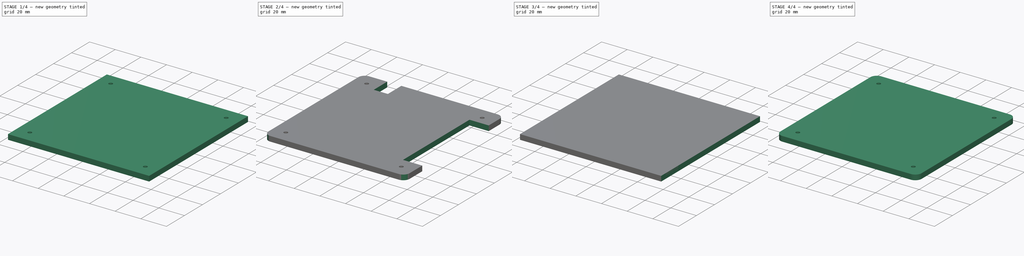
[diagram: build sequence overview — one tinted view per stage of 4, left to right]
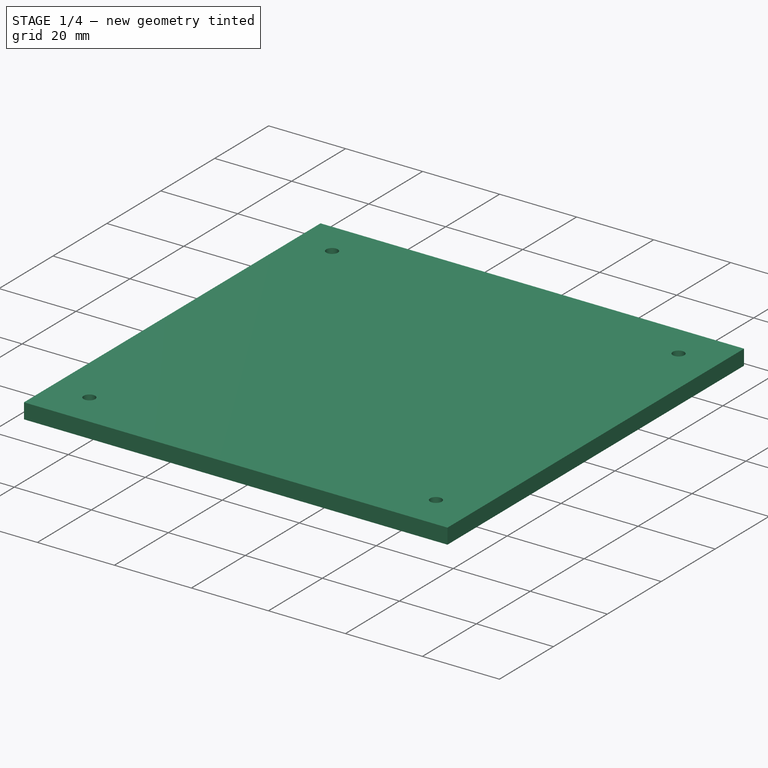
[diagram: stage 1 of 4 — iso view after this stage's code; geometry added in this stage tinted green]
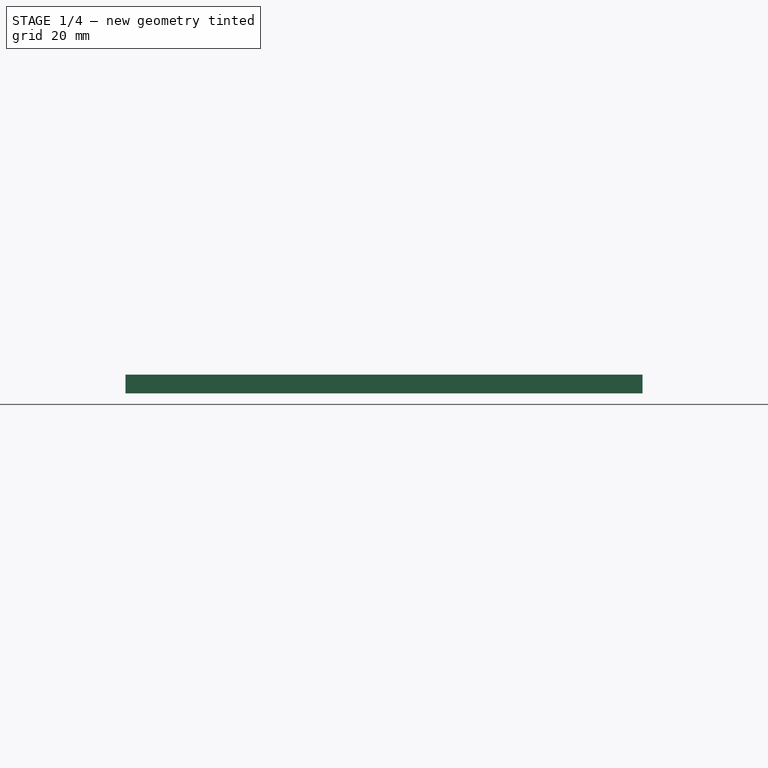
[diagram: stage 1 of 4 — front view after this stage's code; geometry added in this stage tinted green]
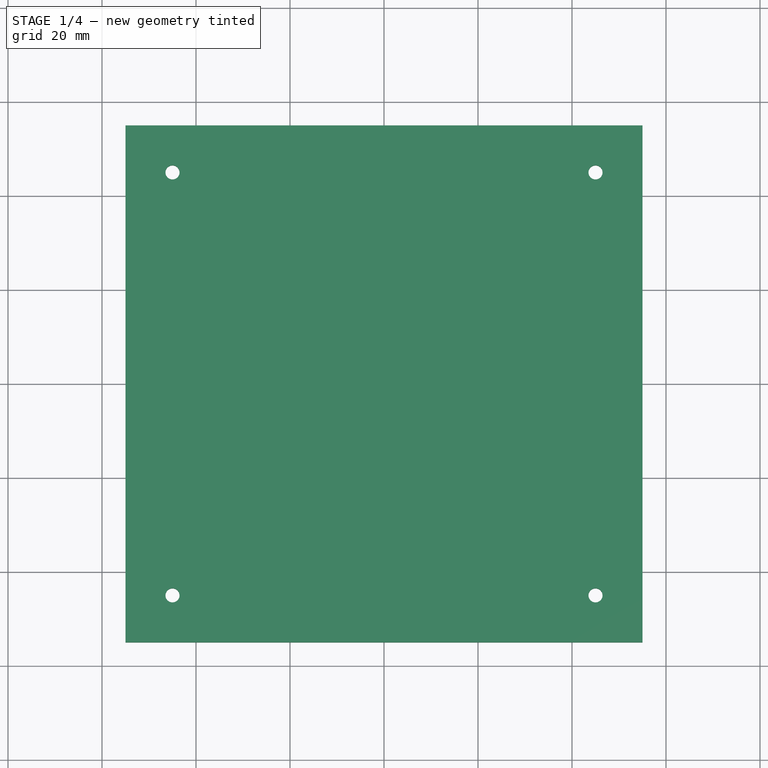
[diagram: stage 1 of 4 — top view after this stage's code; geometry added in this stage tinted green]
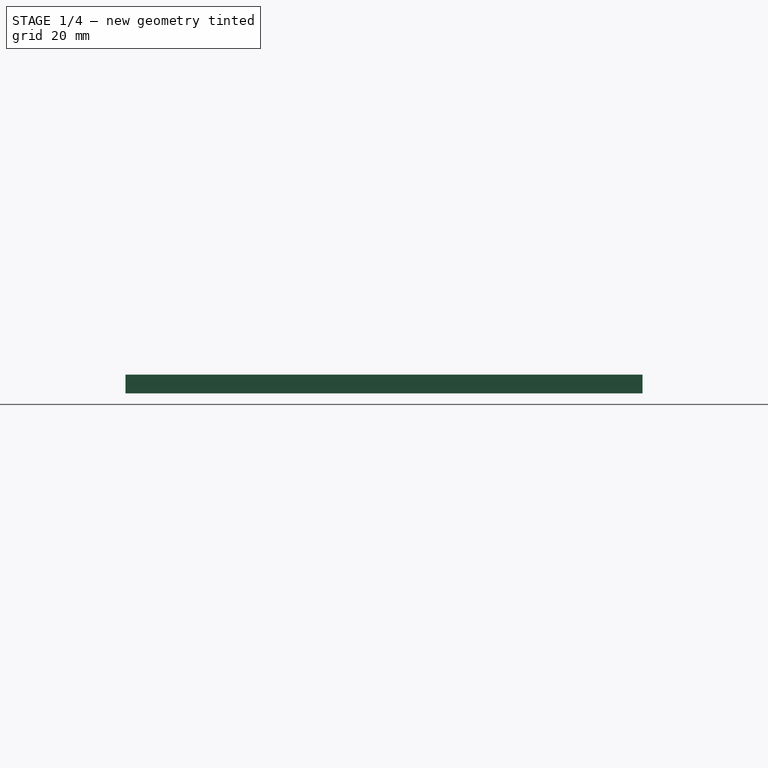
[diagram: stage 1 of 4 — right view after this stage's code; geometry added in this stage tinted green]
FCSTD DOCUMENT  (FreeCAD 0.21R33771 (Git))
Label: Ampel
License: All rights reserved
LicenseURL: https://en.wikipedia.org/wiki/All_rights_reserved
objects: Sketcher::SketchObject×7, PartDesign::Pocket×5, PartDesign::Pad×2, PartDesign::Fillet×2, PartDesign::Body×2, Part::Part2DObjectPython×2
note: 29 computed .brp shape members not serialized (recipe doc carries the construction recipe); baked Part::Feature solids carry a one-line shape summary decoded from their .brp

FEATURE [PartDesign::Body] Body  label="Bottom"
  Group = -> [Sketch,Pad,Sketch001,Pocket,Fillet]
  Origin = -> Origin
  Tip = -> Fillet
FEATURE [Sketcher::SketchObject] Sketch002
  FullyConstrained = true
  MapMode = 5
  Support = -> [XY_Plane001]
  sketch-geometry (4):
    g0: LineSegment StartX=-55 StartY=55 StartZ=0 EndX=55 EndY=55 EndZ=0
    g1: LineSegment StartX=55 StartY=55 StartZ=0 EndX=55 EndY=-55 EndZ=0
    g2: LineSegment StartX=55 StartY=-55 StartZ=0 EndX=-55 EndY=-55 EndZ=0
    g3: LineSegment StartX=-55 StartY=-55 StartZ=0 EndX=-55 EndY=55 EndZ=0
  constraints (10):
    c: Coincident(g0,g1)
    c: Coincident(g1,g2)
    c: Coincident(g2,g3)
    c: Coincident(g3,g0)
    c: Horizontal(g2)
    c: Vertical(g1)
    c: Symmetric(g0,g0,g-2)
    c: Symmetric(g0,g2,g-1)
    c: Equal(g0,g3)
    c: DistanceX(g0,g0) = 110
FEATURE [PartDesign::Pad] Pad001
  Direction = (0,0,1)
  Length = 4
  Length2 = 10
  Profile = -> Sketch002
  ReferenceAxis = -> Sketch002 [N_Axis]
  Type = 0
FEATURE [Sketcher::SketchObject] Sketch003
  FullyConstrained = true
  MapMode = 5
  Placement = pos=(0,0,4) rot=(0,0,1;0rad)
  Support = -> [Pad001]
  sketch-geometry (4):
    g0: Circle CenterX=-45 CenterY=45 CenterZ=0 NormalX=0 NormalY=0 NormalZ=1 AngleXU=0 Radius=1.5
    g1: Circle CenterX=45 CenterY=45 CenterZ=0 NormalX=0 NormalY=0 NormalZ=1 AngleXU=0 Radius=1.5
    g2: Circle CenterX=-45 CenterY=-45 CenterZ=0 NormalX=0 NormalY=0 NormalZ=1 AngleXU=0 Radius=1.5
    g3: Circle CenterX=45 CenterY=-45 CenterZ=0 NormalX=0 NormalY=0 NormalZ=1 AngleXU=0 Radius=1.5
  constraints (9):
    c: Symmetric(g1,g0,g-2)
    c: Symmetric(g0,g2,g-1)
    c: Symmetric(g2,g3,g-2)
    c: Equal(g3,g1)
    c: Equal(g3,g0)
    c: Equal(g3,g2)
    c: Diameter(g3) = 3
    c: DistanceX(g0,g1) = 90
    c: DistanceY(g2,g0) = 90
FEATURE [PartDesign::Pocket] Pocket001
  BaseFeature = -> Pad001
  Direction = (0,0,-1)
  Length = 0
  Length2 = 5
  Profile = -> Sketch003
  ReferenceAxis = -> Sketch003 [N_Axis]
  Type = 3
  UpToFace = -> Pad001 [Face5]
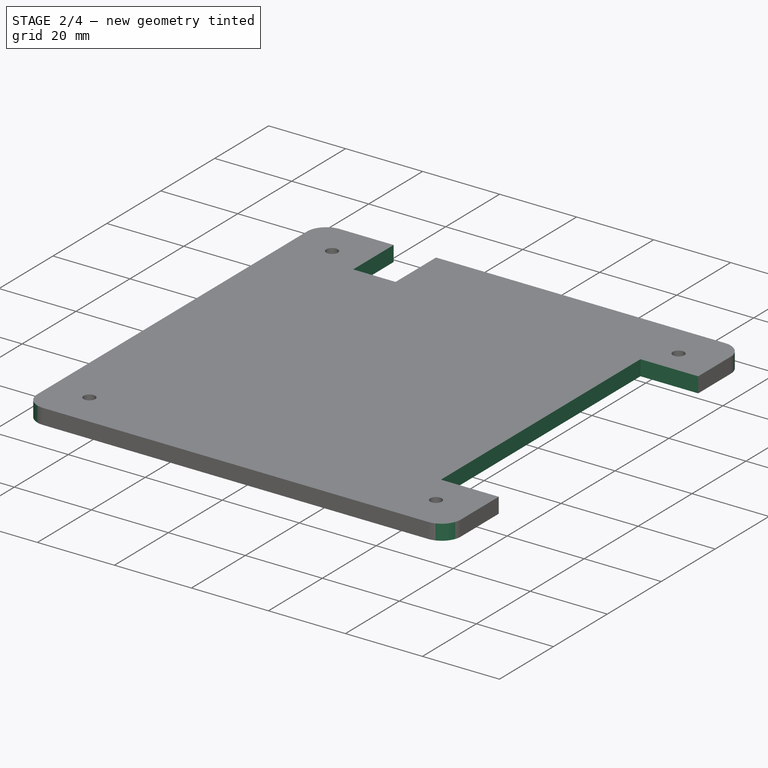
[diagram: stage 2 of 4 — iso view after this stage's code; geometry added in this stage tinted green]
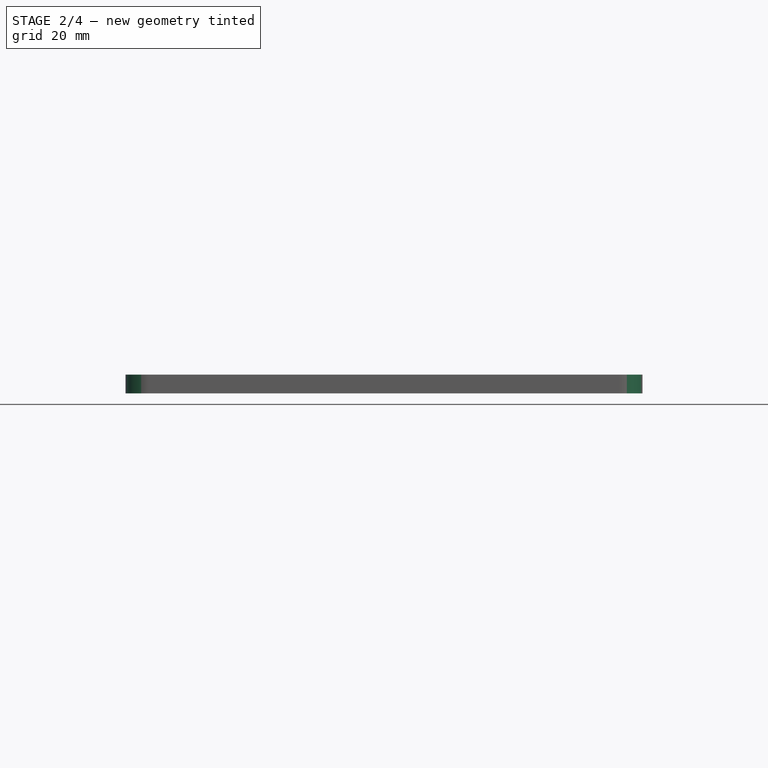
[diagram: stage 2 of 4 — front view after this stage's code; geometry added in this stage tinted green]
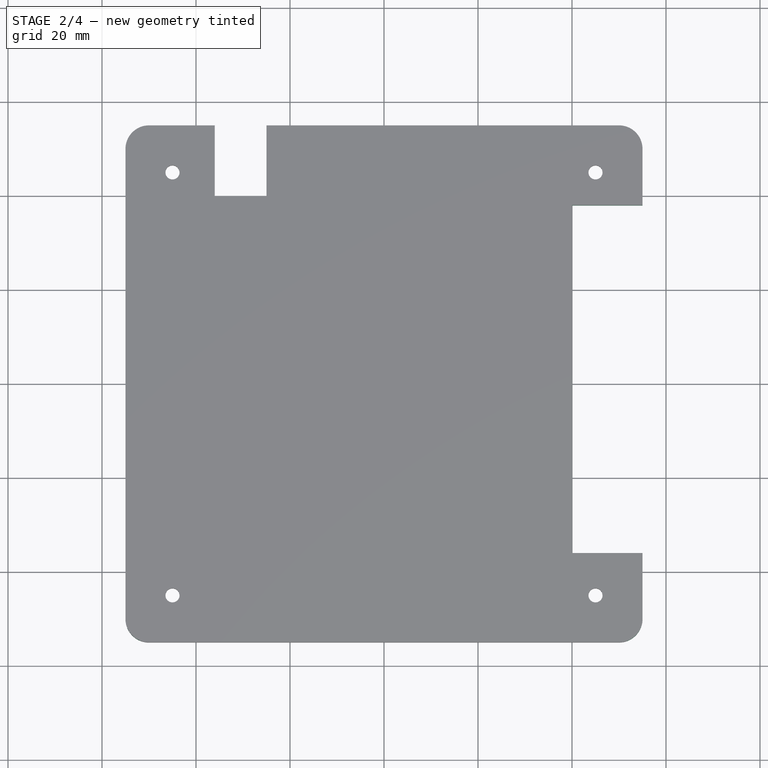
[diagram: stage 2 of 4 — top view after this stage's code; geometry added in this stage tinted green]
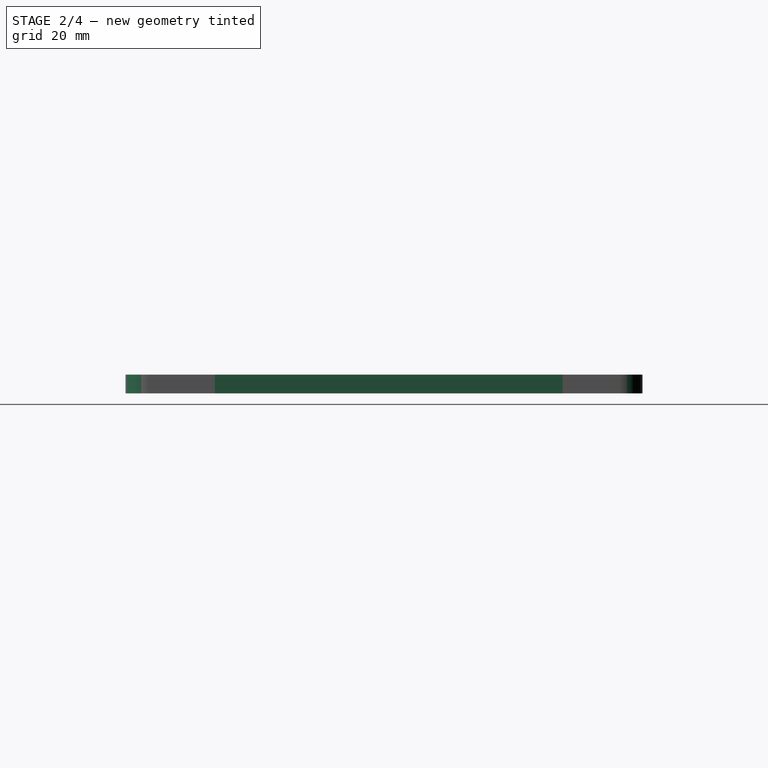
[diagram: stage 2 of 4 — right view after this stage's code; geometry added in this stage tinted green]
FEATURE [PartDesign::Fillet] Fillet001
  Base = -> Pocket001 [Edge8,Edge5,Edge2,Edge1]
  BaseFeature = -> Pocket001
  Radius = 5
  SupportTransform = false
  UseAllEdges = false
FEATURE [Sketcher::SketchObject] Sketch004
  ExternalGeometry = -> [Fillet001]
  FullyConstrained = true
  MapMode = 5
  Placement = pos=(0,0,4) rot=(0,0,1;0rad)
  Support = -> [Fillet001]
  sketch-geometry (12):
    g0: LineSegment StartX=55 StartY=38 StartZ=0 EndX=40 EndY=38 EndZ=0
    g1: LineSegment StartX=40 StartY=38 StartZ=0 EndX=40 EndY=-36 EndZ=0
    g2: LineSegment StartX=40 StartY=-36 StartZ=0 EndX=55 EndY=-36 EndZ=0
    g3: LineSegment StartX=55 StartY=-36 StartZ=0 EndX=55 EndY=38 EndZ=0
    g4: LineSegment StartX=-50 StartY=50 StartZ=0 EndX=50 EndY=50 EndZ=0
    g5: LineSegment StartX=50 StartY=50 StartZ=0 EndX=50 EndY=-50 EndZ=0
    g6: LineSegment StartX=50 StartY=-50 StartZ=0 EndX=-50 EndY=-50 EndZ=0
    g7: LineSegment StartX=-50 StartY=-50 StartZ=0 EndX=-50 EndY=50 EndZ=0
    g8: LineSegment StartX=-36 StartY=55 StartZ=0 EndX=-25 EndY=55 EndZ=0
    g9: LineSegment StartX=-25 StartY=55 StartZ=0 EndX=-25 EndY=40 EndZ=0
    g10: LineSegment StartX=-25 StartY=40 StartZ=0 EndX=-36 EndY=40 EndZ=0
    g11: LineSegment StartX=-36 StartY=40 StartZ=0 EndX=-36 EndY=55 EndZ=0
  constraints (33):
    c: Coincident(g0,g1)
    c: Coincident(g1,g2)
    c: Coincident(g2,g3)
    c: Coincident(g3,g0)
    c: Horizontal(g0)
    c: Horizontal(g2)
    c: Coincident(g4,g5)
    c: Coincident(g5,g6)
    c: Coincident(g6,g7)
    c: Coincident(g7,g4)
    c: Horizontal(g6)
    c: Symmetric(g4,g4,g-2)
    c: Symmetric(g4,g6,g-1)
    c: Equal(g7,g4)
    c: DistanceX(g4,g4) = 100
    c: Tangent(g3,g-3)
    c: Vertical(g1)
    c: Coincident(g8,g9)
    c: Coincident(g9,g10)
    c: Coincident(g10,g11)
    c: Coincident(g11,g8)
    c: Horizontal(g8)
    c: Horizontal(g10)
    c: Vertical(g9)
    c: Vertical(g11)
    c: PointOnObject(g8,g-4)
    c: DistanceX(g8,g8) = 11
    c: DistanceX(g1,g5) = 10
    c: Vertical(g5)
    c: DistanceY(g10,g4) = 10
    c: DistanceY(g5,g1) = 14
    c: DistanceY(g0,g4) = 12
    c: DistanceX(g4,g10) = 14
FEATURE [PartDesign::Pocket] Pocket002
  BaseFeature = -> Fillet001
  Direction = (0,0,-1)
  Length = 0
  Length2 = 5
  Profile = -> Sketch004
  ReferenceAxis = -> Sketch004 [N_Axis]
  Type = 3
  UpToFace = -> Fillet001 [Face2]
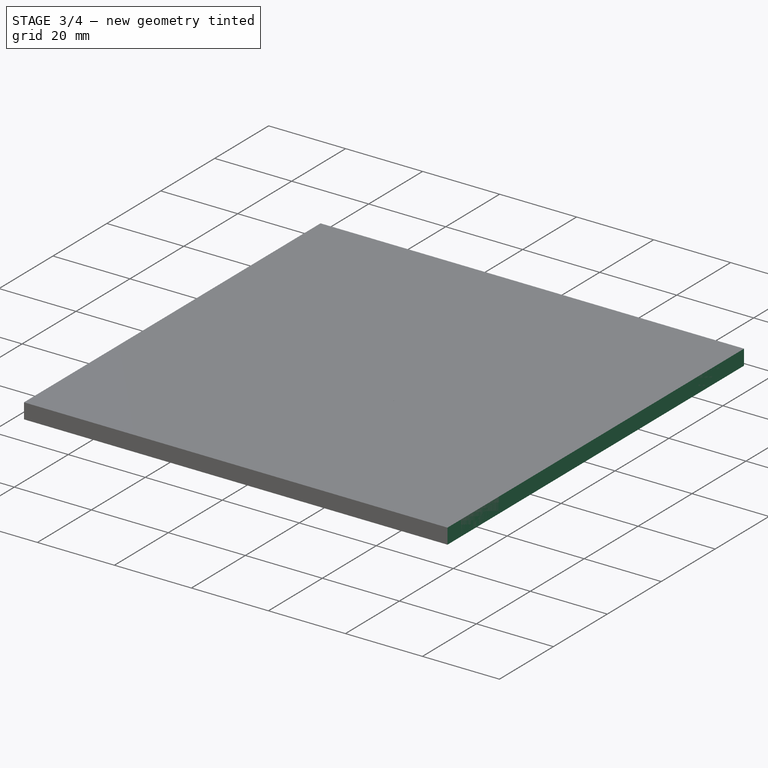
[diagram: stage 3 of 4 — iso view after this stage's code; geometry added in this stage tinted green]
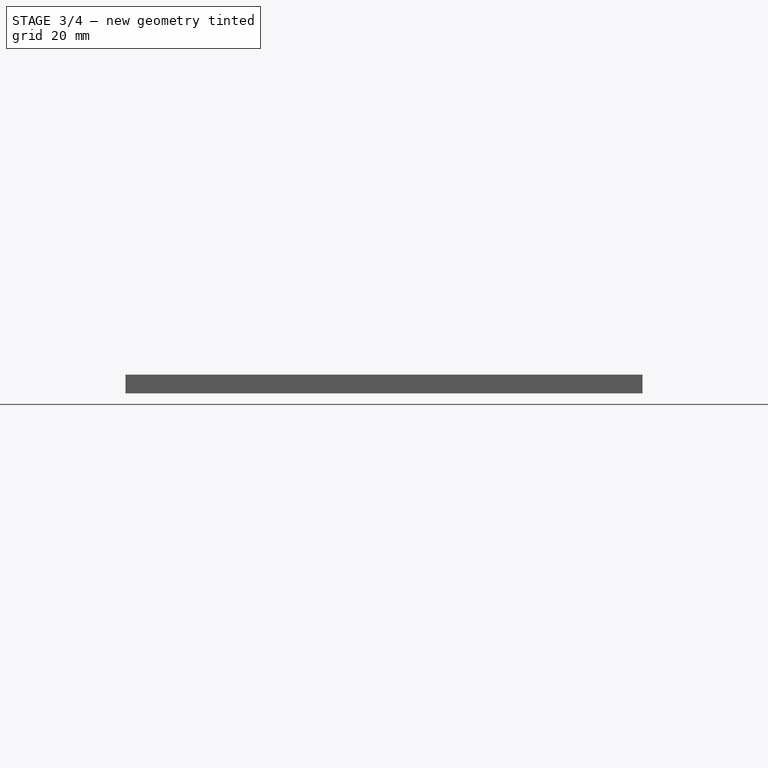
[diagram: stage 3 of 4 — front view after this stage's code; geometry added in this stage tinted green]
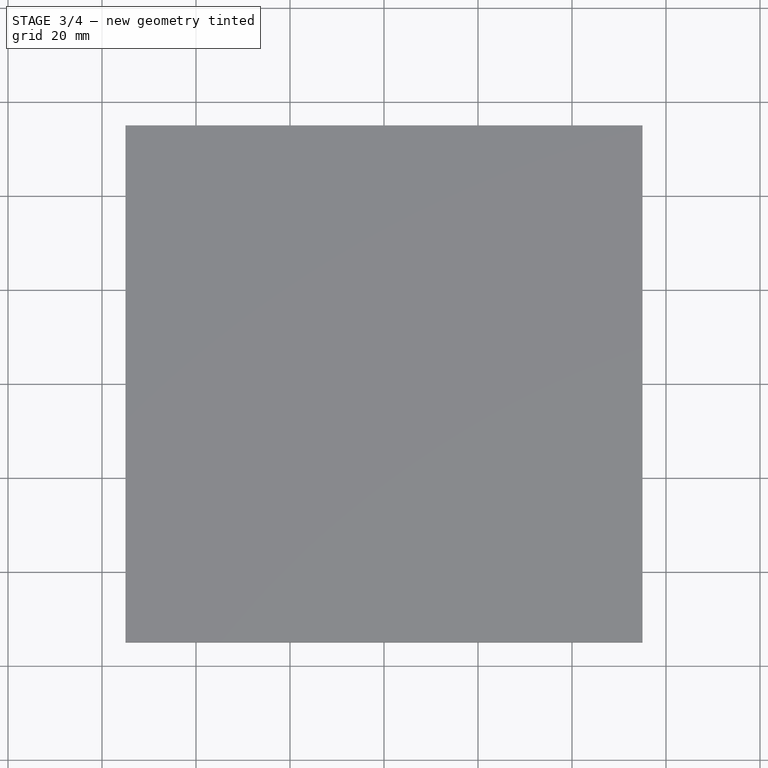
[diagram: stage 3 of 4 — top view after this stage's code; geometry added in this stage tinted green]
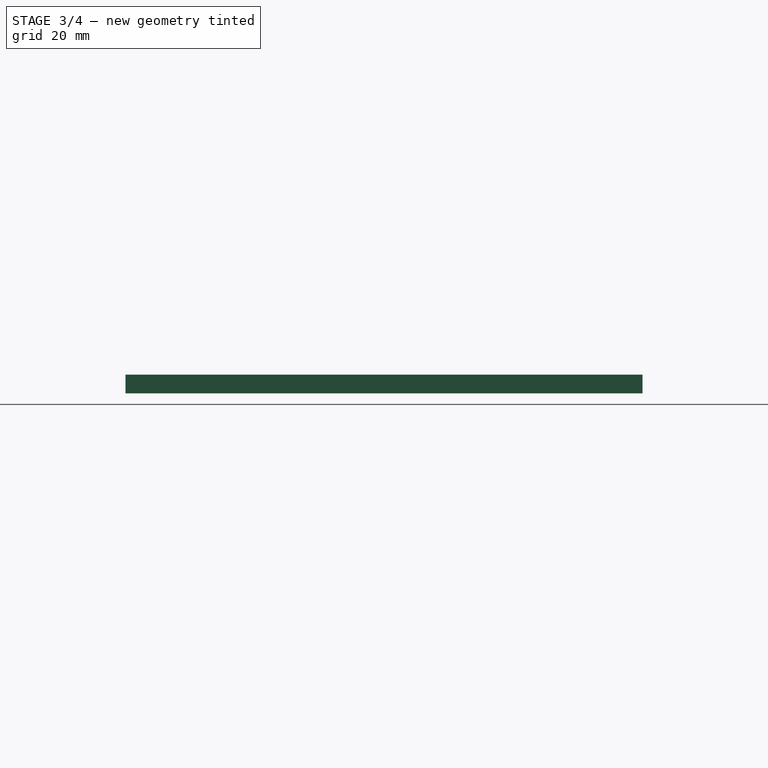
[diagram: stage 3 of 4 — right view after this stage's code; geometry added in this stage tinted green]
FEATURE [Sketcher::SketchObject] Sketch
  FullyConstrained = true
  MapMode = 5
  Support = -> [XY_Plane]
  sketch-geometry (4):
    g0: LineSegment StartX=-55 StartY=55 StartZ=0 EndX=55 EndY=55 EndZ=0
    g1: LineSegment StartX=55 StartY=55 StartZ=0 EndX=55 EndY=-55 EndZ=0
    g2: LineSegment StartX=55 StartY=-55 StartZ=0 EndX=-55 EndY=-55 EndZ=0
    g3: LineSegment StartX=-55 StartY=-55 StartZ=0 EndX=-55 EndY=55 EndZ=0
  constraints (10):
    c: Coincident(g0,g1)
    c: Coincident(g1,g2)
    c: Coincident(g2,g3)
    c: Coincident(g3,g0)
    c: Horizontal(g2)
    c: Vertical(g1)
    c: Symmetric(g0,g0,g-2)
    c: Symmetric(g0,g2,g-1)
    c: Equal(g0,g3)
    c: DistanceY(g1,g1) = 110
FEATURE [PartDesign::Pad] Pad
  Direction = (0,0,1)
  Length = 4
  Length2 = 10
  Profile = -> Sketch
  ReferenceAxis = -> Sketch [N_Axis]
  Type = 0
FEATURE [Sketcher::SketchObject] Sketch005
  FullyConstrained = true
  MapMode = 5
  Placement = pos=(0,0,4) rot=(0,0,1;0rad)
  Support = -> [Pocket002]
  sketch-geometry (26):
    g0: LineSegment StartX=-50 StartY=50 StartZ=0 EndX=50 EndY=50 EndZ=0
    g1: LineSegment StartX=50 StartY=50 StartZ=0 EndX=50 EndY=-50 EndZ=0
    g2: LineSegment StartX=50 StartY=-50 StartZ=0 EndX=-50 EndY=-50 EndZ=0
    g3: LineSegment StartX=-50 StartY=-50 StartZ=0 EndX=-50 EndY=50 EndZ=0
    g4: LineSegment StartX=-20 StartY=46 StartZ=0 EndX=0 EndY=46 EndZ=0
    g5: LineSegment StartX=0 StartY=46 StartZ=0 EndX=0 EndY=35 EndZ=0
    g6: LineSegment StartX=0 StartY=35 StartZ=0 EndX=-20 EndY=35 EndZ=0
    g7: LineSegment StartX=-20 StartY=35 StartZ=0 EndX=-20 EndY=46 EndZ=0
    g8: LineSegment StartX=8 StartY=46 StartZ=0 EndX=28 EndY=46 EndZ=0
    g9: LineSegment StartX=28 StartY=46 StartZ=0 EndX=28 EndY=35 EndZ=0
    g10: LineSegment StartX=28 StartY=35 StartZ=0 EndX=8 EndY=35 EndZ=0
    g11: LineSegment StartX=8 StartY=35 StartZ=0 EndX=8 EndY=46 EndZ=0
    g12: LineSegment StartX=-32.5 StartY=-31 StartZ=0 EndX=-23.5 EndY=-31 EndZ=0
    g13: LineSegment StartX=-23.5 StartY=-31 StartZ=0 EndX=-23.5 EndY=-45 EndZ=0
    g14: LineSegment StartX=-23.5 StartY=-45 StartZ=0 EndX=-32.5 EndY=-45 EndZ=0
    g15: LineSegment StartX=-32.5 StartY=-45 StartZ=0 EndX=-32.5 EndY=-31 EndZ=0
    g16: LineSegment StartX=-7 StartY=-31 StartZ=0 EndX=2 EndY=-31 EndZ=0
    g17: LineSegment StartX=2 StartY=-31 StartZ=0 EndX=2 EndY=-45 EndZ=0
    g18: LineSegment StartX=2 StartY=-45 StartZ=0 EndX=-7 EndY=-45 EndZ=0
    g19: LineSegment StartX=-7 StartY=-45 StartZ=0 EndX=-7 EndY=-31 EndZ=0
    g20: LineSegment StartX=16.5 StartY=-32 StartZ=0 EndX=27.5 EndY=-32 EndZ=0
    g21: LineSegment StartX=27.5 StartY=-32 StartZ=0 EndX=27.5 EndY=-46 EndZ=0
    g22: LineSegment StartX=27.5 StartY=-46 StartZ=0 EndX=16.5 EndY=-46 EndZ=0
    g23: LineSegment StartX=16.5 StartY=-46 StartZ=0 EndX=16.5 EndY=-32 EndZ=0
    g24: LineSegment StartX=-23.5 StartY=-31 StartZ=0 EndX=-7 EndY=-31 EndZ=0
    g25: LineSegment StartX=0 StartY=46 StartZ=0 EndX=8 EndY=46 EndZ=0
  constraints (74):
    c: Coincident(g0,g1)
    c: Coincident(g1,g2)
    c: Coincident(g2,g3)
    c: Coincident(g3,g0)
    c: Horizontal(g2)
    c: Vertical(g1)
    c: Symmetric(g0,g2,g-1)
    c: Symmetric(g0,g0,g-2)
    c: Equal(g0,g3)
    c: DistanceX(g0,g0) = 100
    c: Coincident(g4,g5)
    c: Coincident(g5,g6)
    c: Coincident(g6,g7)
    c: Coincident(g7,g4)
    c: Horizontal(g4)
    c: Horizontal(g6)
    c: Vertical(g5)
    c: Vertical(g7)
    c: Coincident(g8,g9)
    c: Coincident(g9,g10)
    c: Coincident(g10,g11)
    c: Coincident(g11,g8)
    c: Horizontal(g8)
    c: Horizontal(g10)
    c: Vertical(g9)
    c: Vertical(g11)
    c: Coincident(g12,g13)
    c: Coincident(g13,g14)
    c: Coincident(g14,g15)
    c: Coincident(g15,g12)
    c: Horizontal(g12)
    c: Horizontal(g14)
    c: Vertical(g13)
    c: Vertical(g15)
    c: Coincident(g16,g17)
    c: Coincident(g17,g18)
    c: Coincident(g18,g19)
    c: Coincident(g19,g16)
    c: Horizontal(g16)
    c: Horizontal(g18)
    c: Vertical(g17)
    c: Vertical(g19)
    c: Coincident(g20,g21)
    c: Coincident(g21,g22)
    c: Coincident(g22,g23)
    c: Coincident(g23,g20)
    c: Horizontal(g20)
    c: Horizontal(g22)
    c: Vertical(g21)
    c: Vertical(g23)
    c: Equal(g12,g16)
    c: Equal(g15,g19)
    c: Coincident(g24,g12)
    c: Coincident(g24,g16)
    c: Horizontal(g24)
    c: DistanceX(g12,g12) = 9
    c: DistanceY(g15,g15) = 14
    c: DistanceX(g20,g20) = 11
    c: DistanceY(g21,g21) = 14
    c: Equal(g9,g5)
    c: Equal(g8,g4)
    c: DistanceY(g9,g9) = 11
    c: DistanceX(g8,g8) = 20
    c: Coincident(g25,g4)
    c: Coincident(g25,g8)
    c: Horizontal(g25)
    c: DistanceX(g0,g4) = 30
    c: DistanceX(g8,g0) = 22
    c: DistanceY(g8,g0) = 4
    c: DistanceX(g2,g14) = 17.5
    c: DistanceX(g2,g18) = 43
    c: DistanceX(g21,g1) = 22.5
    c: DistanceY(g1,g21) = 4
    c: DistanceY(g2,g14) = 5
FEATURE [PartDesign::Pocket] Pocket003
  BaseFeature = -> Pocket002
  Direction = (0,0,-1)
  Length = 0
  Length2 = 5
  Profile = -> Sketch005
  ReferenceAxis = -> Sketch005 [N_Axis]
  Type = 3
  UpToFace = -> Pocket002 [Face2]
FEATURE [Sketcher::SketchObject] Sketch006
  FullyConstrained = true
  MapMode = 5
  Placement = pos=(0,0,4) rot=(0,0,1;0rad)
  Support = -> [Pocket003]
  sketch-geometry (16):
    g0: ArcOfCircle CenterX=-11.5 CenterY=14.3 CenterZ=0 NormalX=0 NormalY=0 NormalZ=1 AngleXU=0 Radius=3.5 StartAngle=1.95105 EndAngle=7.47373
    g1: ArcOfCircle CenterX=-11.5 CenterY=20.8 CenterZ=0 NormalX=0 NormalY=0 NormalZ=1 AngleXU=0 Radius=3.5 StartAngle=5.09264 EndAngle=10.6153
    g2: LineSegment StartX=-50 StartY=50 StartZ=0 EndX=50 EndY=50 EndZ=0
    g3: LineSegment StartX=50 StartY=50 StartZ=0 EndX=50 EndY=-50 EndZ=0
    g4: LineSegment StartX=50 StartY=-50 StartZ=0 EndX=-50 EndY=-50 EndZ=0
    g5: LineSegment StartX=-50 StartY=-50 StartZ=0 EndX=-50 EndY=50 EndZ=0
    g6: LineSegment StartX=-11.5 StartY=20.8 StartZ=0 EndX=-11.5 EndY=14.3 EndZ=0
    g7: ArcOfCircle CenterX=13 CenterY=14.5 CenterZ=0 NormalX=0 NormalY=0 NormalZ=1 AngleXU=0 Radius=3.5 StartAngle=0.380251 EndAngle=5.90293
    g8: ArcOfCircle CenterX=19.5 CenterY=14.5 CenterZ=0 NormalX=0 NormalY=0 NormalZ=1 AngleXU=0 Radius=3.5 StartAngle=3.52184 EndAngle=9.04453
    g9: ArcOfCircle CenterX=12.5 CenterY=-9.8 CenterZ=0 NormalX=0 NormalY=0 NormalZ=1 AngleXU=0 Radius=3.5 StartAngle=5.09264 EndAngle=10.6153
    g10: ArcOfCircle CenterX=12.5 CenterY=-16.3 CenterZ=0 NormalX=0 NormalY=0 NormalZ=1 AngleXU=0 Radius=3.5 StartAngle=1.95105 EndAngle=7.47373
    g11: ArcOfCircle CenterX=-11.3 CenterY=-9.5 CenterZ=0 NormalX=0 NormalY=0 NormalZ=1 AngleXU=0 Radius=3.5 StartAngle=3.52184 EndAngle=9.04453
    g12: ArcOfCircle CenterX=-17.8 CenterY=-9.5 CenterZ=0 NormalX=0 NormalY=0 NormalZ=1 AngleXU=0 Radius=3.5 StartAngle=0.380251 EndAngle=5.90293
    g13: LineSegment StartX=-17.8 StartY=-9.5 StartZ=0 EndX=-11.3 EndY=-9.5 EndZ=0
    g14: LineSegment StartX=13 StartY=14.5 StartZ=0 EndX=19.5 EndY=14.5 EndZ=0
    g15: LineSegment StartX=12.5 StartY=-9.8 StartZ=0 EndX=12.5 EndY=-16.3 EndZ=0
  constraints (50):
    c: Coincident(g2,g3)
    c: Coincident(g3,g4)
    c: Coincident(g4,g5)
    c: Coincident(g5,g2)
    c: Horizontal(g4)
    c: Vertical(g3)
    c: Symmetric(g2,g2,g-2)
    c: Symmetric(g2,g4,g-1)
    c: DistanceX(g2,g2) = 100
    c: Coincident(g6,g1)
    c: Coincident(g6,g0)
    c: Vertical(g6)
    c: Equal(g1,g0)
    c: Coincident(g13,g12)
    c: Coincident(g13,g11)
    c: Coincident(g14,g7)
    c: Coincident(g14,g8)
    c: Coincident(g15,g9)
    c: Coincident(g15,g10)
    c: Vertical(g15)
    c: Horizontal(g13)
    c: Horizontal(g14)
    c: Equal(g6,g14)
    c: Equal(g14,g15)
    c: Equal(g15,g13)
    c: Diameter(g1) = 7
    c: Equal(g1,g7)
    c: Equal(g0,g12)
    c: Equal(g12,g11)
    c: Equal(g11,g8)
    c: Equal(g8,g9)
    c: Equal(g9,g10)
    c: DistanceX(g4,g12) = 32.2
    c: DistanceY(g3,g10) = 33.7
    c: Equal(g5,g2)
    c: DistanceX(g8,g2) = 30.5
    c: DistanceY(g1,g2) = 29.2
    c: DistanceX(g4,g0) = 38.5
    c: DistanceY(g4,g11) = 40.5
    c: DistanceX(g9,g3) = 37.5
    c: DistanceY(g8,g2) = 35.5
    c: DistanceY(g6,g6) = 6.5
    c: Coincident(g1,g0)
    c: Coincident(g1,g0)
    c: Coincident(g12,g11)
    c: Coincident(g11,g12)
    c: Coincident(g9,g10)
    c: Coincident(g10,g9)
    c: Coincident(g7,g8)
    c: Coincident(g7,g8)
FEATURE [PartDesign::Pocket] Pocket004
  BaseFeature = -> Pocket003
  Direction = (0,0,-1)
  Length = 0
  Length2 = 5
  Profile = -> Sketch006
  ReferenceAxis = -> Sketch006 [N_Axis]
  Type = 3
  UpToFace = -> Pocket003 [Face2]
FEATURE [PartDesign::Body] Body001  label="Top"
  Group = -> [Sketch002,Pad001,Sketch003,Pocket001,Fillet001,Sketch004,Pocket002,Sketch005,Pocket003,Sketch006,Pocket004]
  Origin = -> Origin001
  Tip = -> Pocket004
FEATURE [Part::Part2DObjectPython] Shape2DView001  label="BottomLine"  # Draft 2D object (typed FeaturePython)
  AutoUpdate = true
  Base = -> Body
  Clip = false
  FuseArch = false
  HiddenLines = false
  InPlace = true
  OnlySolids = false
  Projection = (0,0,1)
  ProjectionMode = 0
  SegmentLength = 0.05
  Tessellation = false
  VisibleOnly = false
FEATURE [Part::Part2DObjectPython] Shape2DView  label="TopLine"  # Draft 2D object (typed FeaturePython)
  AutoUpdate = true
  Base = -> Body001
  Clip = false
  FuseArch = false
  HiddenLines = false
  InPlace = true
  OnlySolids = false
  Projection = (0,0,1)
  ProjectionMode = 0
  SegmentLength = 0.05
  Tessellation = false
  VisibleOnly = false
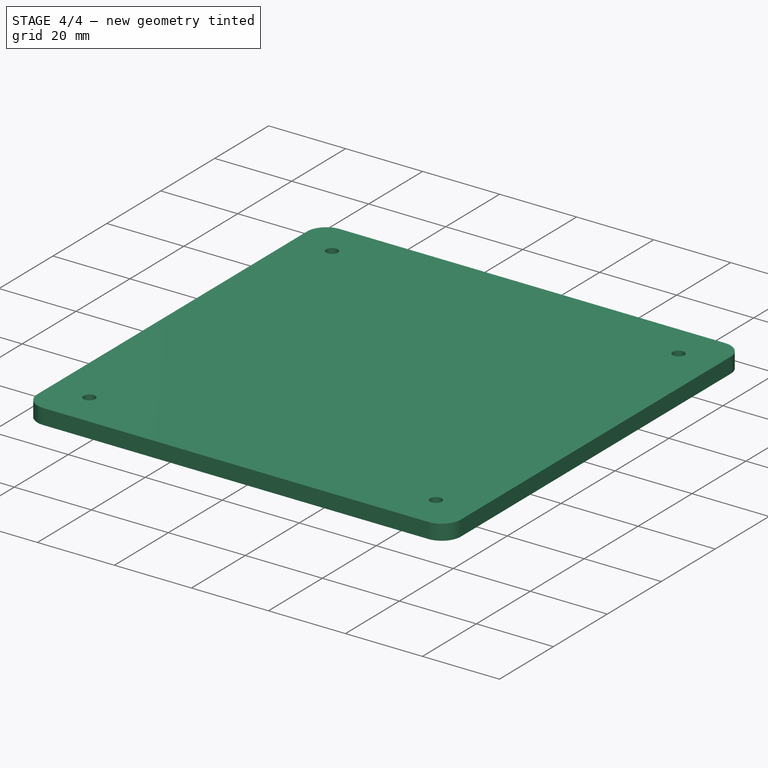
[diagram: stage 4 of 4 — iso view after this stage's code; geometry added in this stage tinted green]
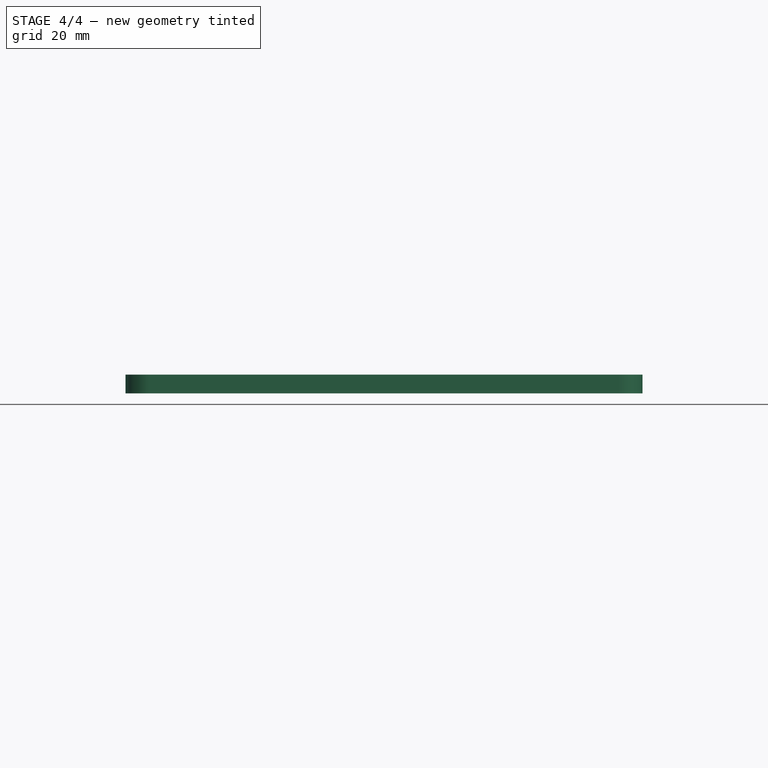
[diagram: stage 4 of 4 — front view after this stage's code; geometry added in this stage tinted green]
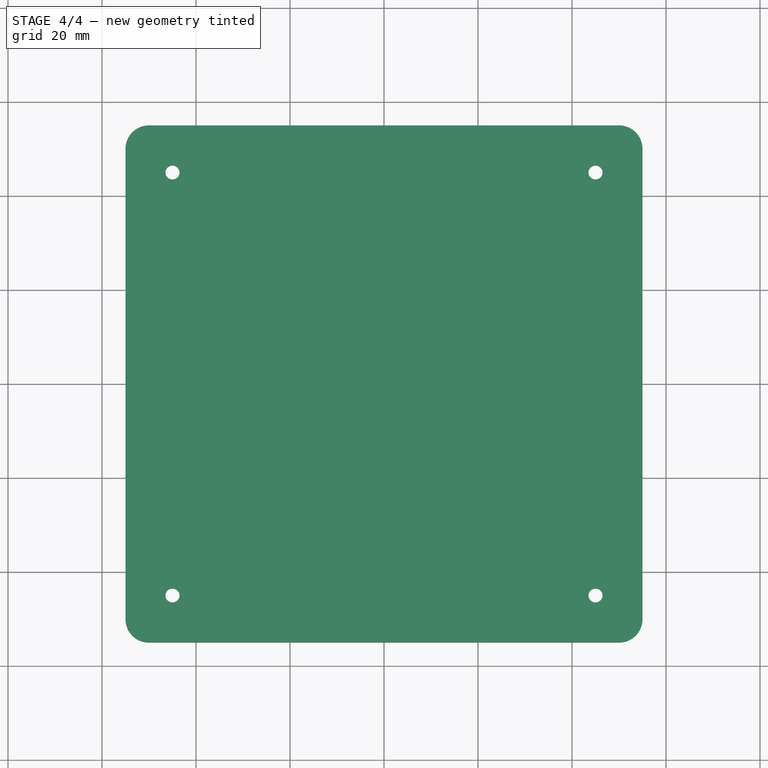
[diagram: stage 4 of 4 — top view after this stage's code; geometry added in this stage tinted green]
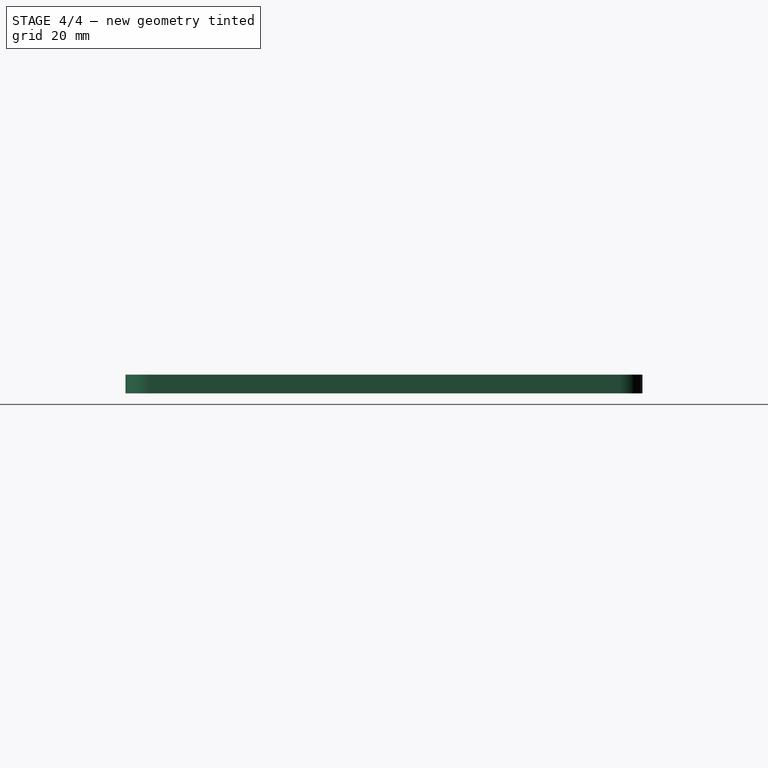
[diagram: stage 4 of 4 — right view after this stage's code; geometry added in this stage tinted green]
FEATURE [Sketcher::SketchObject] Sketch001
  FullyConstrained = true
  MapMode = 5
  Placement = pos=(0,0,4) rot=(0,0,1;0rad)
  Support = -> [Pad]
  sketch-geometry (4):
    g0: Circle CenterX=-45 CenterY=45 CenterZ=0 NormalX=0 NormalY=0 NormalZ=1 AngleXU=0 Radius=1.5
    g1: Circle CenterX=45 CenterY=45 CenterZ=0 NormalX=0 NormalY=0 NormalZ=1 AngleXU=0 Radius=1.5
    g2: Circle CenterX=-45 CenterY=-45 CenterZ=0 NormalX=0 NormalY=0 NormalZ=1 AngleXU=0 Radius=1.5
    g3: Circle CenterX=45 CenterY=-45 CenterZ=0 NormalX=0 NormalY=0 NormalZ=1 AngleXU=0 Radius=1.5
  constraints (9):
    c: Symmetric(g0,g2,g-1)
    c: Symmetric(g1,g0,g-2)
    c: Symmetric(g3,g2,g-2)
    c: Equal(g3,g2)
    c: Equal(g3,g0)
    c: Equal(g3,g1)
    c: Diameter(g3) = 3
    c: DistanceY(g3,g1) = 90
    c: DistanceX(g0,g1) = 90
FEATURE [PartDesign::Pocket] Pocket
  BaseFeature = -> Pad
  Direction = (0,0,-1)
  Length = 0
  Length2 = 5
  Profile = -> Sketch001
  ReferenceAxis = -> Sketch001 [N_Axis]
  Type = 3
  UpToFace = -> Pad [Face5]
FEATURE [PartDesign::Fillet] Fillet
  Base = -> Pocket [Edge8,Edge5,Edge2,Edge1]
  BaseFeature = -> Pocket
  Radius = 5
  SupportTransform = false
  UseAllEdges = false
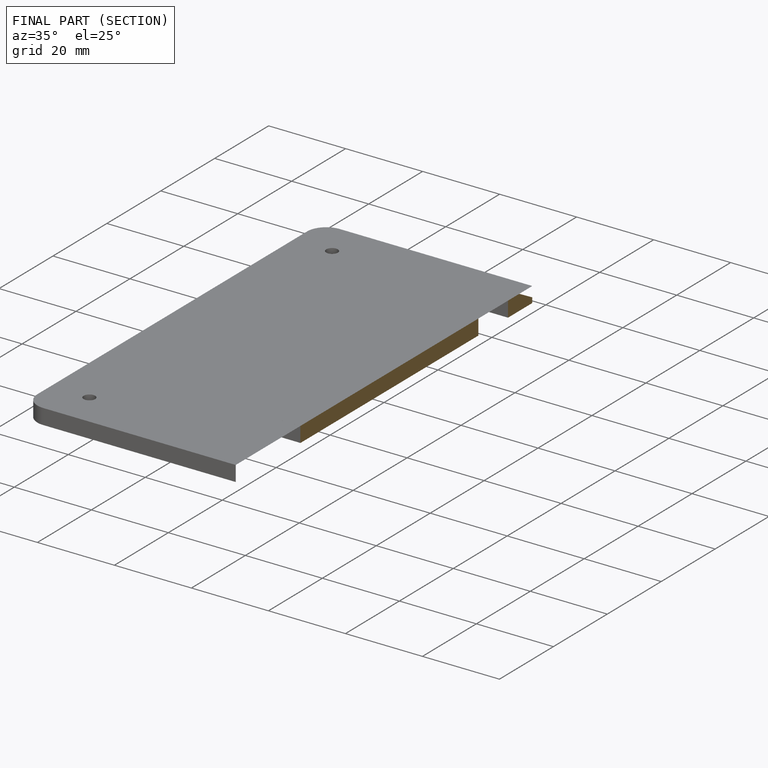
[diagram: finished part — half-section view (interior)]
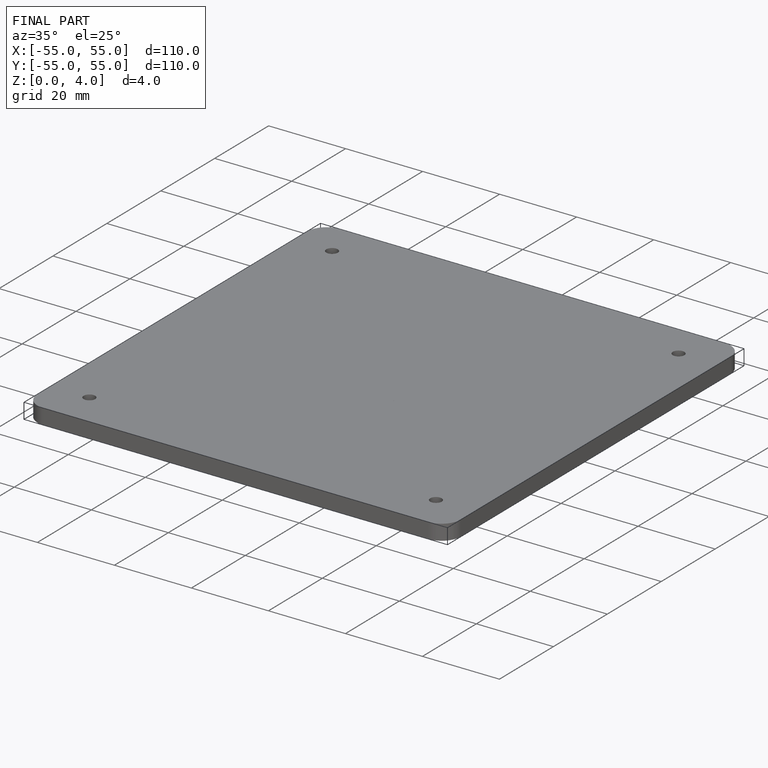
[diagram: finished part — iso view with bounding-box wireframe]
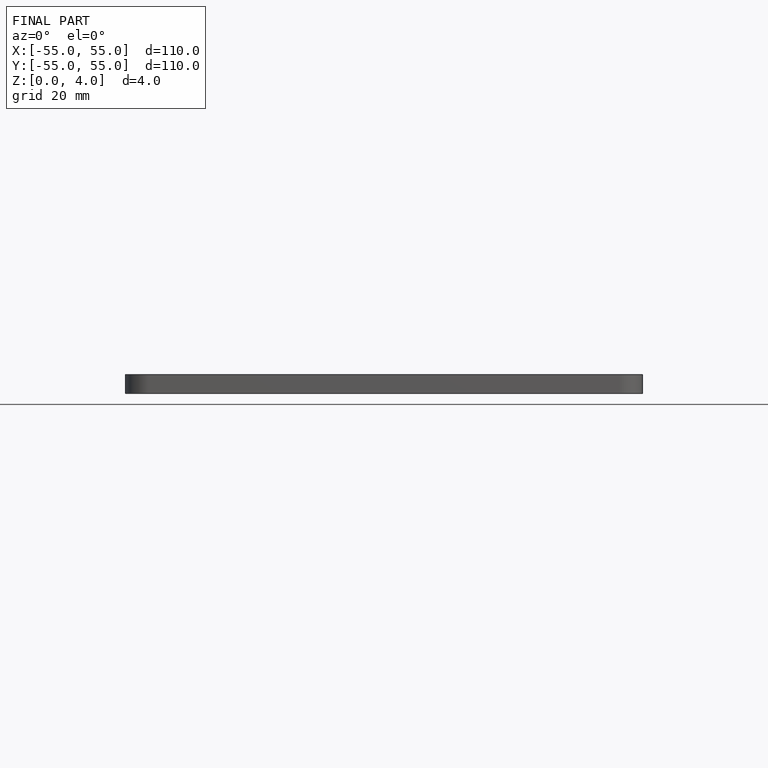
[diagram: finished part — front view with bounding-box wireframe]
